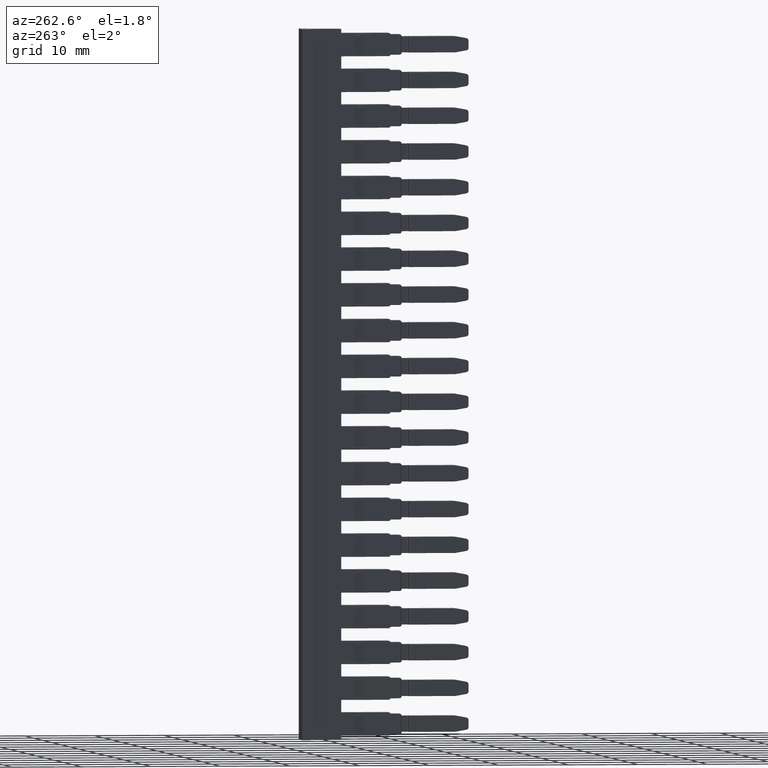
[diagram: clean part render]
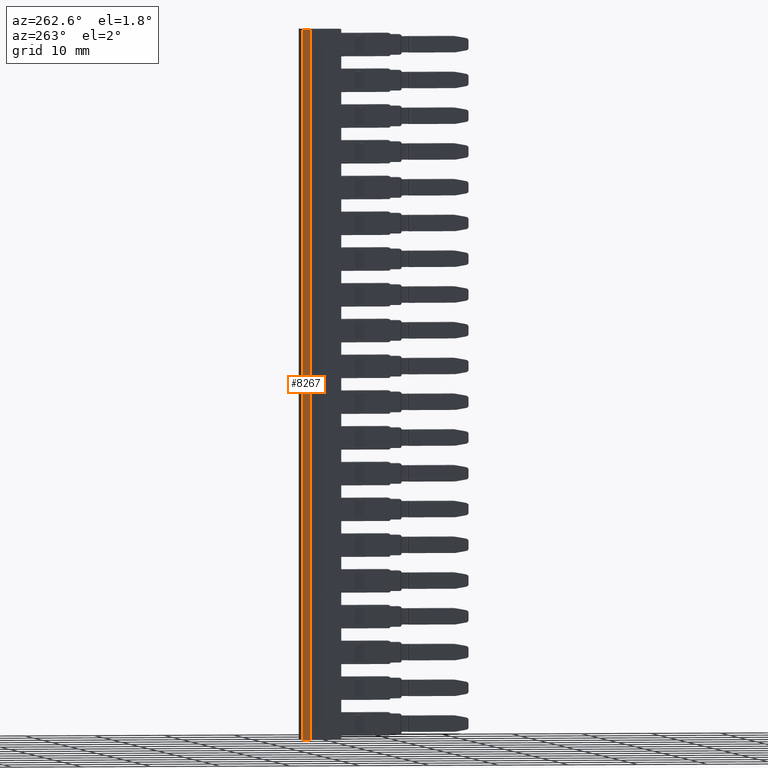
[diagram: same view with one face highlighted and labeled with its STEP entity id]
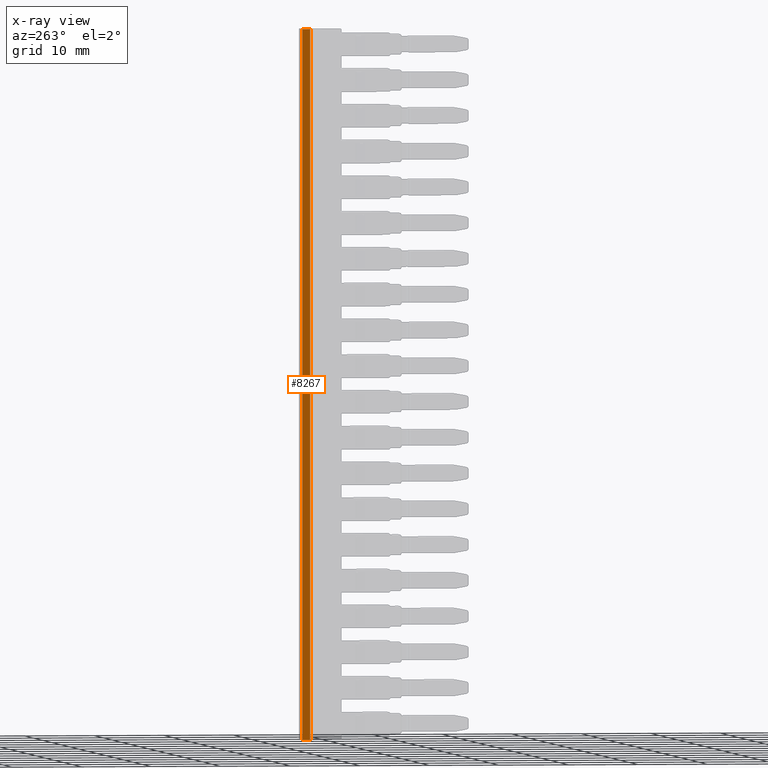
[diagram: x-ray of the same camera — body ghosted, the highlighted face saturated]
A machine part, auxiliary view. The second image highlights one B-rep face of the part: STEP entity #8267.
The next image is the same camera in x-ray: the body ghosted, the highlighted face saturated — about 0% of this face is hidden behind the body in this view.
In plain terms, the highlighted planar face has unit normal (-1, -0, 0).
Its self-contained STEP definition (entity closure, byte-faithful):
#87 = VECTOR ( 'NONE', #11195, 1000.000000000000000 ) ;
#97 = VECTOR ( 'NONE', #11220, 1000.000000000000000 ) ;
#115 = VECTOR ( 'NONE', #11134, 1000.000000000000000 ) ;
#194 = VECTOR ( 'NONE', #11292, 1000.000000000000000 ) ;
#873 = ORIENTED_EDGE ( 'NONE', *, *, #17222, .F. ) ;
#913 = ORIENTED_EDGE ( 'NONE', *, *, #17246, .T. ) ;
#968 = ORIENTED_EDGE ( 'NONE', *, *, #17243, .T. ) ;
#984 = ORIENTED_EDGE ( 'NONE', *, *, #17289, .T. ) ;
#2721 = AXIS2_PLACEMENT_3D ( 'NONE', #21028, #21055, #21063 ) ;
#3670 = CARTESIAN_POINT ( 'NONE',  ( 1456.089907072214600, 989.6926795374903300, 13.05000000017582800 ) ) ;
#3699 = CARTESIAN_POINT ( 'NONE',  ( 1456.089907072214600, 989.6926795374911300, 114.4499999999747900 ) ) ;
#3704 = CARTESIAN_POINT ( 'NONE',  ( 1456.089907072214400, 988.5426795374916100, 13.05000000017582800 ) ) ;
#3708 = CARTESIAN_POINT ( 'NONE',  ( 1456.089907072214400, 988.5426795374908100, 114.4499999999747900 ) ) ;
#8267 = ADVANCED_FACE ( 'NONE', ( #21039 ), #21057, .T. ) ;
#9158 = EDGE_LOOP ( 'NONE', ( #873, #968, #913, #984 ) ) ;
#9698 = VERTEX_POINT ( 'NONE', #3670 ) ;
#9791 = VERTEX_POINT ( 'NONE', #3704 ) ;
#9796 = VERTEX_POINT ( 'NONE', #3708 ) ;
#9805 = VERTEX_POINT ( 'NONE', #3699 ) ;
#11069 = LINE ( 'NONE', #11214, #87 ) ;
#11130 = CARTESIAN_POINT ( 'NONE',  ( 1456.089907072214600, 989.6926795374929500, -30.13084736897824800 ) ) ;
#11134 = DIRECTION ( 'NONE',  ( 2.580167520952895700E-028, -6.606529101504750500E-015, 1.000000000000000000 ) ) ;
#11150 = LINE ( 'NONE', #11130, #115 ) ;
#11195 = DIRECTION ( 'NONE',  ( 0.0000000000000000000, -0.0000000000000000000, 1.000000000000000000 ) ) ;
#11214 = CARTESIAN_POINT ( 'NONE',  ( 1456.089907072214600, 988.5426795374916100, -17.91585598421690100 ) ) ;
#11220 = DIRECTION ( 'NONE',  ( 6.401193638283130500E-015, -1.000000000000000000, 0.0000000000000000000 ) ) ;
#11233 = LINE ( 'NONE', #11267, #97 ) ;
#11267 = CARTESIAN_POINT ( 'NONE',  ( 1456.089907072214600, 989.6926795374930600, 13.05000000017582800 ) ) ;
#11284 = LINE ( 'NONE', #11331, #194 ) ;
#11292 = DIRECTION ( 'NONE',  ( -6.401193638283130500E-015, 1.000000000000000000, -0.0000000000000000000 ) ) ;
#11331 = CARTESIAN_POINT ( 'NONE',  ( 1456.089907072214800, 989.6926795374930600, 114.4499999999747900 ) ) ;
#17222 = EDGE_CURVE ( 'NONE', #9698, #9805, #11150, .T. ) ;
#17243 = EDGE_CURVE ( 'NONE', #9698, #9791, #11233, .T. ) ;
#17246 = EDGE_CURVE ( 'NONE', #9791, #9796, #11069, .T. ) ;
#17289 = EDGE_CURVE ( 'NONE', #9796, #9805, #11284, .T. ) ;
#21028 = CARTESIAN_POINT ( 'NONE',  ( 1456.089907072214600, 989.6926795374930600, -30.13084736897824800 ) ) ;
#21039 = FACE_OUTER_BOUND ( 'NONE', #9158, .T. ) ;
#21055 = DIRECTION ( 'NONE',  ( -1.000000000000000000, -6.401193638283130500E-015, 1.715124499442844000E-015 ) ) ;
#21057 = PLANE ( 'NONE',  #2721 ) ;
#21063 = DIRECTION ( 'NONE',  ( 6.401193638283130500E-015, -1.000000000000000000, 0.0000000000000000000 ) ) ;